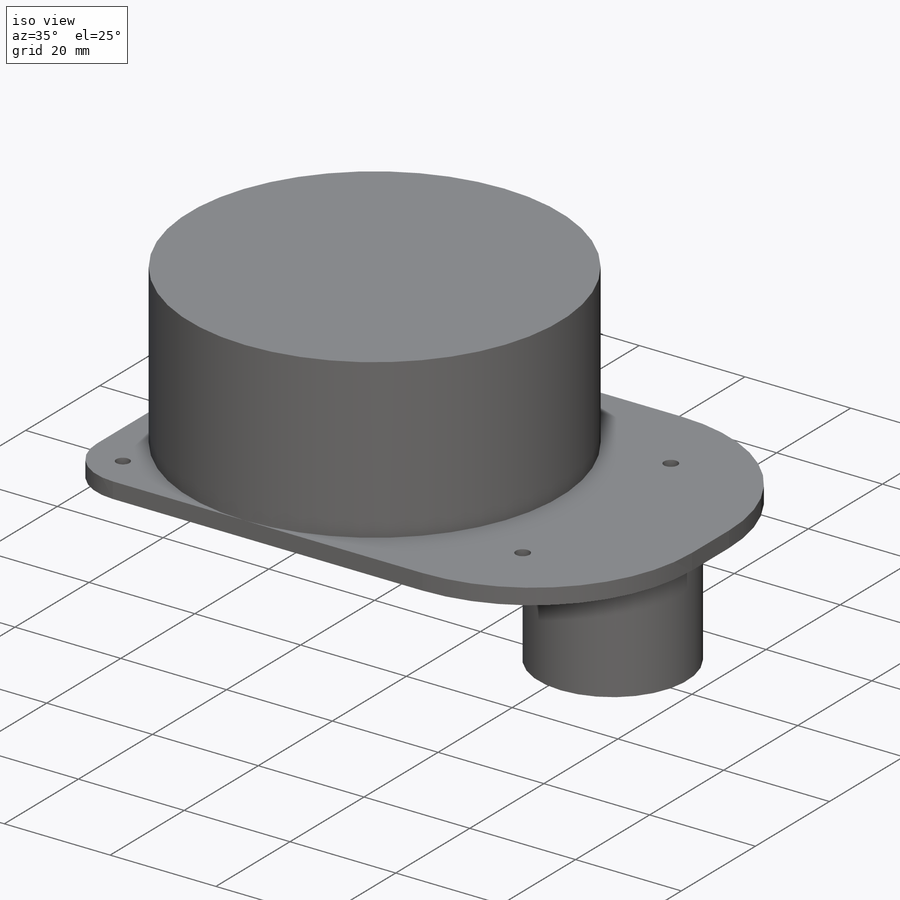
[diagram: iso view]
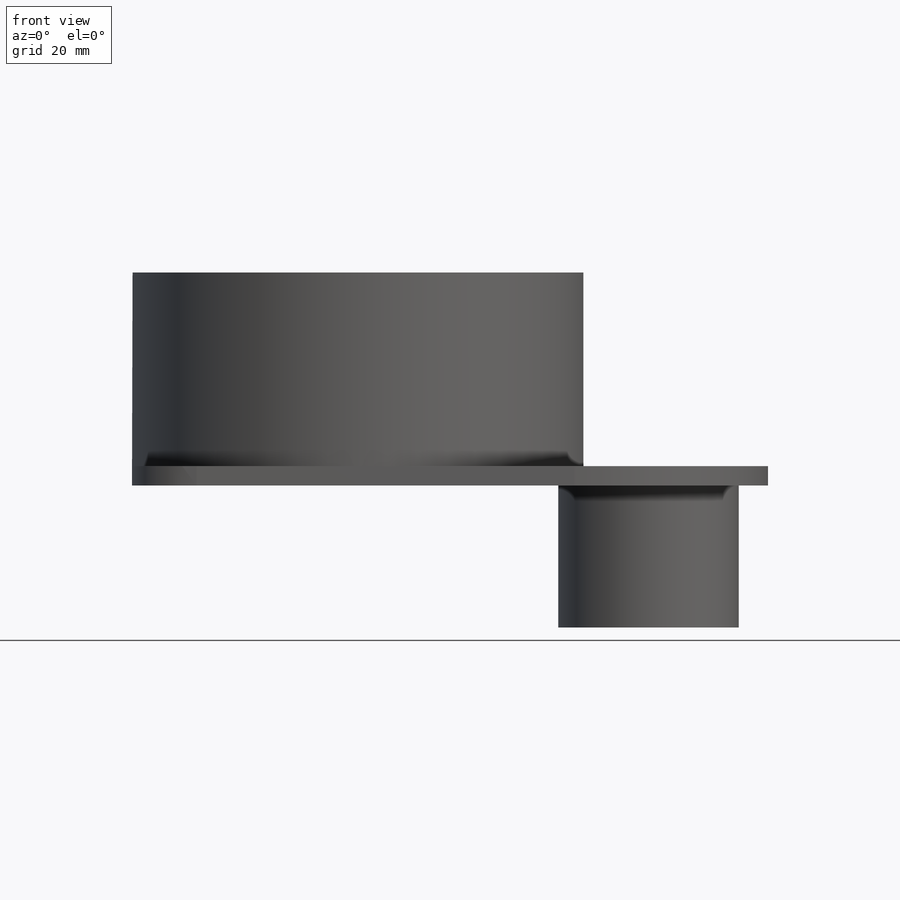
[diagram: front view]
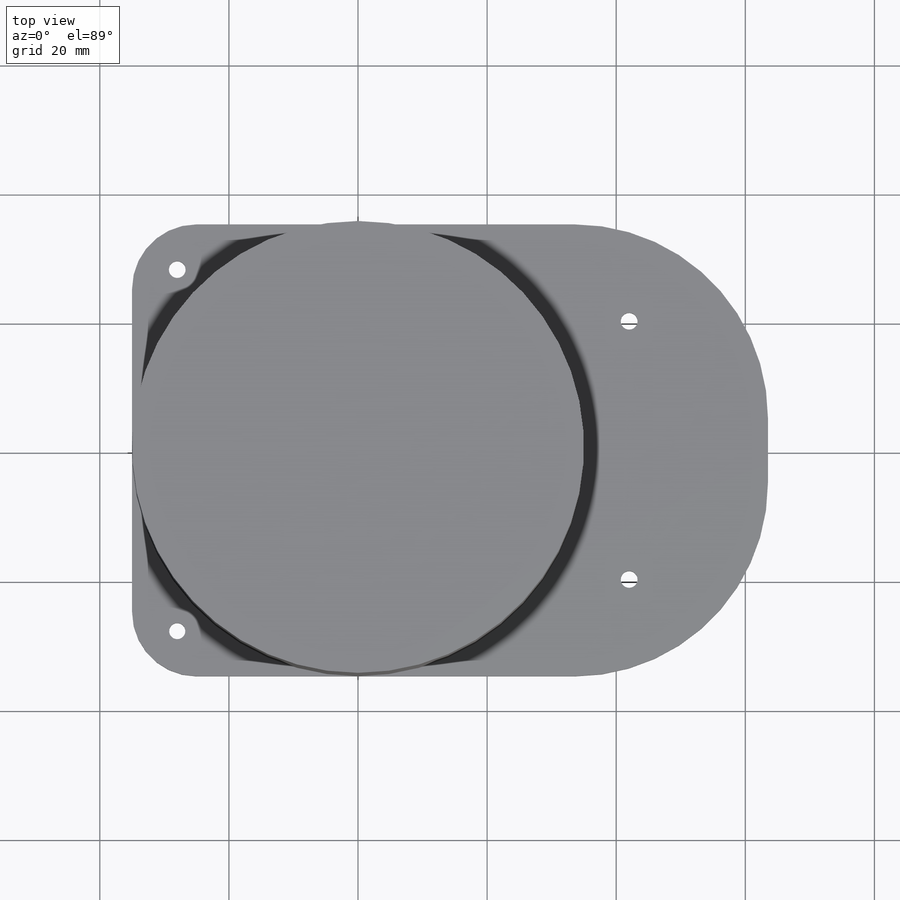
[diagram: top view]
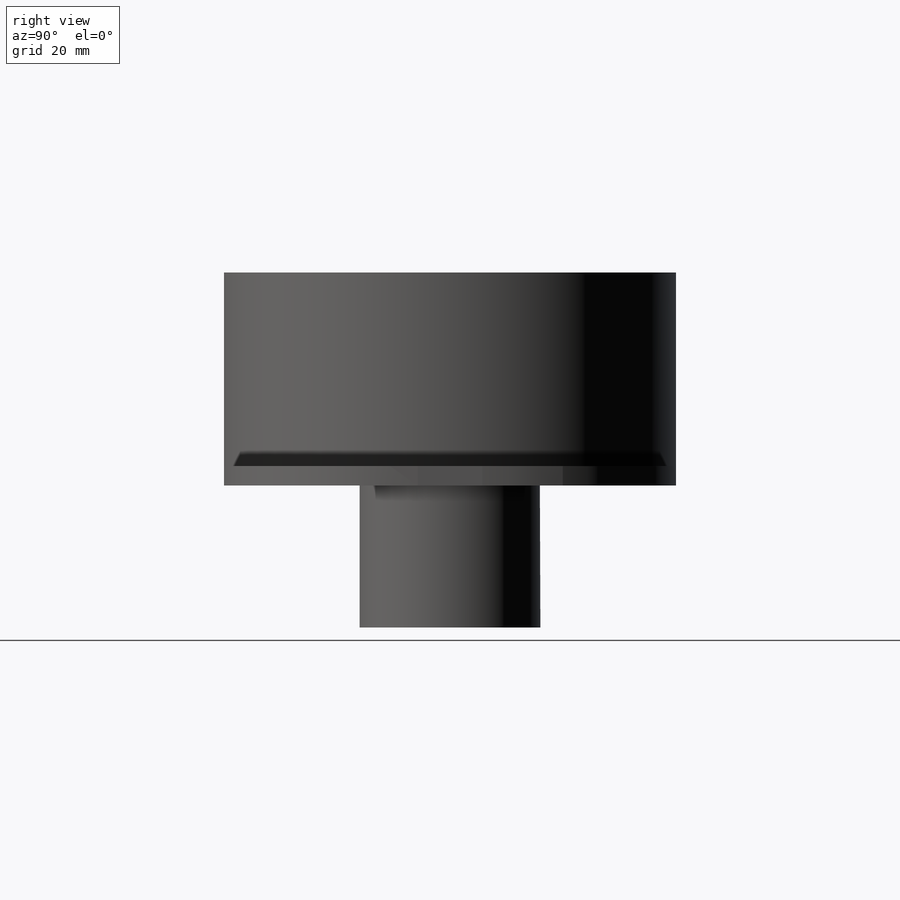
[diagram: right view]
SOLIDWORKS PART (.sldprt)
format: sldprt  version: not decoded by parser v0  size: 190,976 bytes
history: native  units: mm
features: sketch x4, extrude x3, fillet x3, material x1, cut_extrude x1 (+12 scaffold rows collapsed)
feature tree (24):
  scaffold x12  (default folders/planes/origin — collapsed)
  material  "재질 <지정안함>"
  sketch  "스케치1"  dims[D1=~17.937436mm]
  extrude  "보스-돌출1"  Depth=30mm
  sketch  "스케치2"  dims[D1=35.0mm D2=70.0mm D3=35.0mm D4=63.5mm]
  extrude  "보스-돌출2"  Depth=3mm
  fillet  "필렛1"  Radius=10mm
  fillet  "필렛2"  Radius=30mm
  fillet  "필렛3"  Radius=30mm
  sketch  "스케치3"  dims[c1.D5=~1.067115mm c1.D1=20.0mm c1.D2=20.0mm c1.D3=28.0mm c1.D4=28.0mm c2.D5=28.0mm c2.D6=42.0mm]
  cut_extrude  "컷-돌출1"  Depth=3mm
  sketch  "스케치4"  dims[D2=15.0mm D1=45.0mm]
  extrude  "보스-돌출3"  Depth=22mm
decode coverage: 11 of 11 modeling features carry decoded parameters
note: ~ marks probable driven/reference dimensions
note: suppression state not decoded; provenance and decode notes live in map.json
